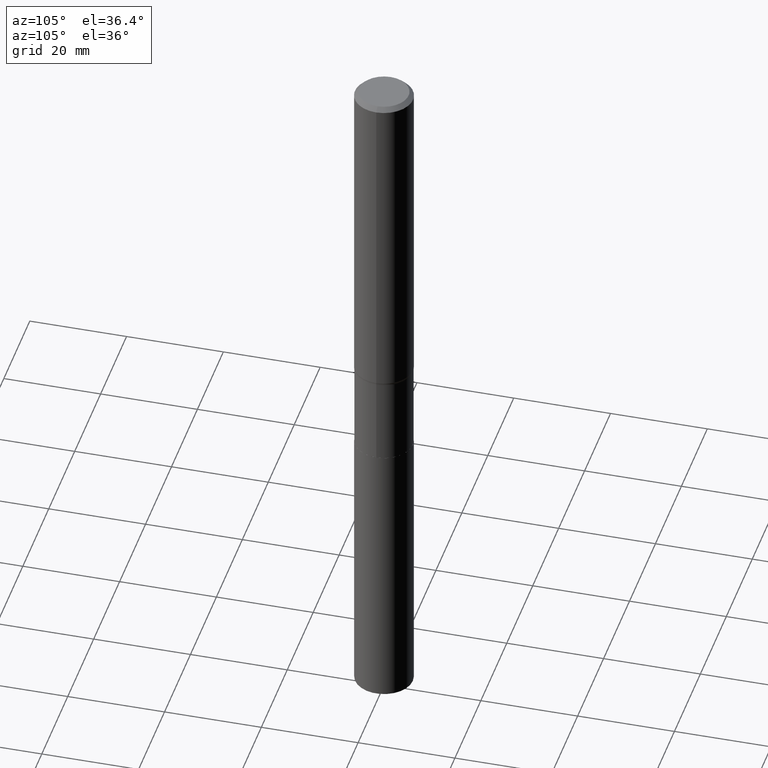
[diagram: clean part render]
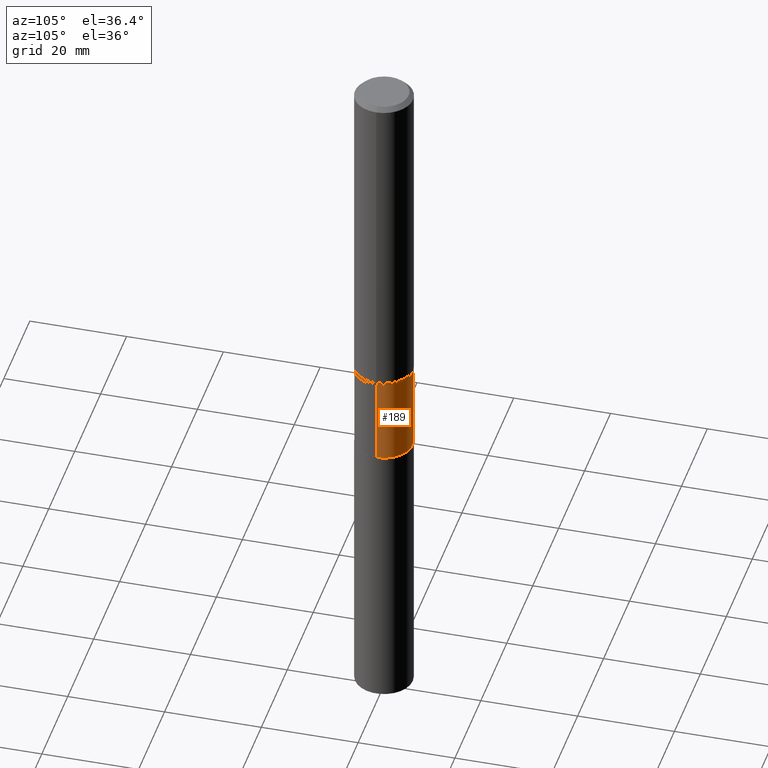
[diagram: same view with one face highlighted and labeled with its STEP entity id]
A machine part, auxiliary view. The second image highlights one B-rep face of the part: STEP entity #189.
In plain terms, the highlighted cylindrical surface (edge-blend (fillet) strip) has radius 5.9538 mm, axis along (-0, 0, 1).
Its self-contained STEP definition (entity closure, byte-faithful):
#5 = VERTEX_POINT ( 'NONE', #291 ) ;
#7 = CARTESIAN_POINT ( 'NONE',  ( 0.2344000000000000528, -1.352599870667833977E-14, -3.405200000000000227 ) ) ;
#10 = ORIENTED_EDGE ( 'NONE', *, *, #169, .F. ) ;
#27 = ORIENTED_EDGE ( 'NONE', *, *, #99, .T. ) ;
#36 = CARTESIAN_POINT ( 'NONE',  ( 6.591516620191417280E-29, -9.410938800717813781E-15, -2.695399999999999796 ) ) ;
#45 = CIRCLE ( 'NONE', #171, 0.2343999999999999417 ) ;
#47 = DIRECTION ( 'NONE',  ( -2.445468806185136877E-29, 3.491481338843145188E-15, 1.000000000000000000 ) ) ;
#50 = CARTESIAN_POINT ( 'NONE',  ( -0.2343999999999999972, 1.665512172621674816E-15, -1.152998385155749824E-29 ) ) ;
#54 = AXIS2_PLACEMENT_3D ( 'NONE', #382, #57, #142 ) ;
#57 = DIRECTION ( 'NONE',  ( -2.445468806185136597E-29, 3.491481338843145583E-15, 1.000000000000000000 ) ) ;
#81 = FACE_OUTER_BOUND ( 'NONE', #428, .T. ) ;
#95 = LINE ( 'NONE', #50, #352 ) ;
#99 = EDGE_CURVE ( 'NONE', #260, #128, #253, .T. ) ;
#123 = CARTESIAN_POINT ( 'NONE',  ( -0.2344000000000000528, -8.984553355251572291E-15, -3.405200000000000227 ) ) ;
#128 = VERTEX_POINT ( 'NONE', #123 ) ;
#142 = DIRECTION ( 'NONE',  ( 1.000000000000000000, -6.982962677686268288E-15, 0.000000000000000000 ) ) ;
#160 = ORIENTED_EDGE ( 'NONE', *, *, #362, .T. ) ;
#169 = EDGE_CURVE ( 'NONE', #5, #186, #45, .T. ) ;
#171 = AXIS2_PLACEMENT_3D ( 'NONE', #36, #367, #281 ) ;
#185 = DIRECTION ( 'NONE',  ( -2.445468806185136597E-29, 3.491481338843145583E-15, 1.000000000000000000 ) ) ;
#186 = VERTEX_POINT ( 'NONE', #399 ) ;
#189 = ADVANCED_FACE ( 'NONE', ( #81 ), #439, .T. ) ;
#196 = LINE ( 'NONE', #236, #283 ) ;
#236 = CARTESIAN_POINT ( 'NONE',  ( 0.2343999999999999972, -1.636806451649660911E-15, 1.142975836246567295E-29 ) ) ;
#249 = DIRECTION ( 'NONE',  ( 1.000000000000000000, -6.982962677686266711E-15, 4.876176775795935793E-29 ) ) ;
#253 = CIRCLE ( 'NONE', #54, 0.2344000000000000528 ) ;
#260 = VERTEX_POINT ( 'NONE', #7 ) ;
#281 = DIRECTION ( 'NONE',  ( 1.000000000000000000, -6.982962677686263555E-15, 0.000000000000000000 ) ) ;
#283 = VECTOR ( 'NONE', #47, 39.37007874015748143 ) ;
#286 = CARTESIAN_POINT ( 'NONE',  ( 0.000000000000000000, 0.000000000000000000, 0.000000000000000000 ) ) ;
#291 = CARTESIAN_POINT ( 'NONE',  ( 0.2343999999999999417, -1.104774525236747390E-14, -2.695399999999999796 ) ) ;
#299 = DIRECTION ( 'NONE',  ( -2.445468806185136877E-29, 3.491481338843145188E-15, 1.000000000000000000 ) ) ;
#313 = EDGE_CURVE ( 'NONE', #260, #5, #196, .T. ) ;
#352 = VECTOR ( 'NONE', #299, 39.37007874015748143 ) ;
#362 = EDGE_CURVE ( 'NONE', #128, #186, #95, .T. ) ;
#367 = DIRECTION ( 'NONE',  ( -2.445468806185136597E-29, 3.491481338843145583E-15, 1.000000000000000000 ) ) ;
#382 = CARTESIAN_POINT ( 'NONE',  ( 8.327310378821627098E-29, -1.188919225502867807E-14, -3.405200000000000227 ) ) ;
#399 = CARTESIAN_POINT ( 'NONE',  ( -0.2343999999999999417, -8.984553355251572291E-15, -2.695399999999999796 ) ) ;
#428 = EDGE_LOOP ( 'NONE', ( #27, #160, #10, #459 ) ) ;
#439 = CYLINDRICAL_SURFACE ( 'NONE', #451, 0.2343999999999999972 ) ;
#451 = AXIS2_PLACEMENT_3D ( 'NONE', #286, #185, #249 ) ;
#459 = ORIENTED_EDGE ( 'NONE', *, *, #313, .F. ) ;